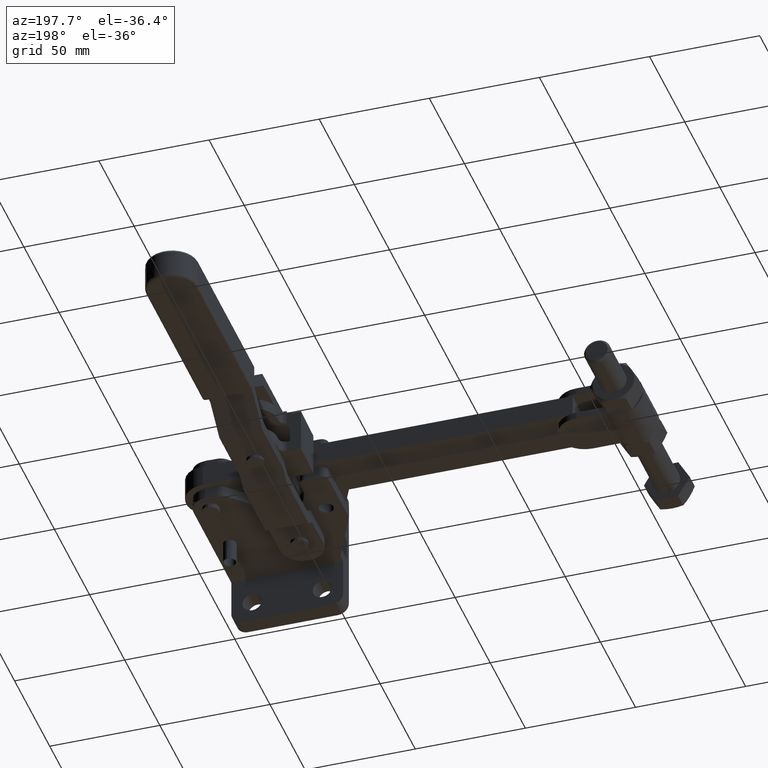
[diagram: clean part render]
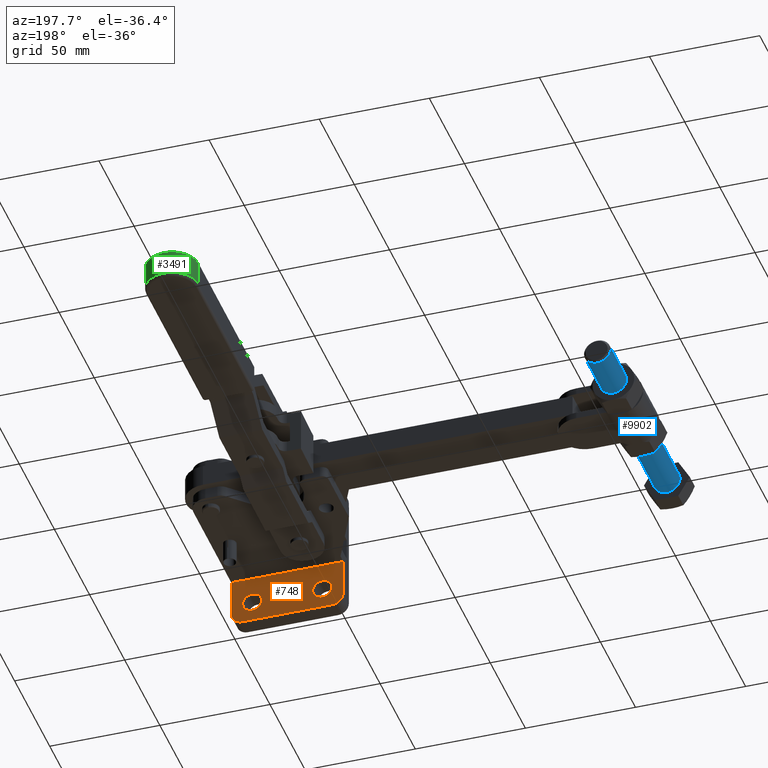
[diagram: same view with three faces highlighted in distinct colors, each labeled with its STEP entity id]
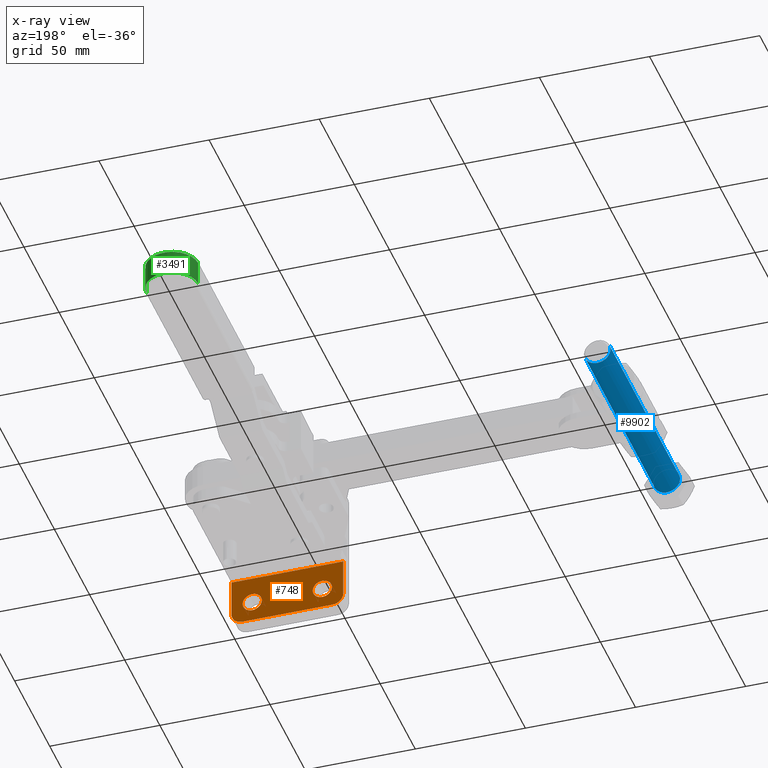
[diagram: x-ray of the same camera — body ghosted, the three highlighted faces saturated]
A machine part, auxiliary view with three faces highlighted in distinct colors.
The next image is the same camera in x-ray (body ghosted, the three faces saturated) — at least one of them is partly hidden behind the body in this view.
Their STEP definitions:

[orange] entity #748 — the highlighted planar face has unit normal (0, -1, -0).
#174 = DIRECTION ( 'NONE',  ( -1.224606353822368400E-016, 1.000000000000000000, 7.844394864020566400E-017 ) ) ;
#357 = ORIENTED_EDGE ( 'NONE', *, *, #3389, .F. ) ;
#438 = CARTESIAN_POINT ( 'NONE',  ( -7.250642050390549500E-016, 5.000000000000024900, -15.00000000000018300 ) ) ;
#748 = ADVANCED_FACE ( 'NONE', ( #5732, #8033, #10310 ), #2053, .F. ) ;
#936 = ORIENTED_EDGE ( 'NONE', *, *, #9199, .T. ) ;
#999 = EDGE_CURVE ( 'NONE', #2484, #2651, #4802, .T. ) ;
#1149 = VERTEX_POINT ( 'NONE', #7166 ) ;
#1280 = CARTESIAN_POINT ( 'NONE',  ( -36.94999999999817000, 4.999999999999997300, -27.60000000000017900 ) ) ;
#1558 = EDGE_CURVE ( 'NONE', #4331, #3087, #4382, .T. ) ;
#1736 = DIRECTION ( 'NONE',  ( 1.224606353822368400E-016, -1.000000000000000000, -7.844394864020566400E-017 ) ) ;
#1768 = AXIS2_PLACEMENT_3D ( 'NONE', #7449, #7422, #7393 ) ;
#1850 = LINE ( 'NONE', #10633, #6473 ) ;
#1937 = ORIENTED_EDGE ( 'NONE', *, *, #999, .T. ) ;
#2053 = PLANE ( 'NONE',  #2704 ) ;
#2073 = DIRECTION ( 'NONE',  ( 1.224606353822368400E-016, -1.000000000000000000, -7.844394864020566400E-017 ) ) ;
#2124 = AXIS2_PLACEMENT_3D ( 'NONE', #9550, #2073, #9465 ) ;
#2197 = EDGE_CURVE ( 'NONE', #2484, #10666, #10294, .T. ) ;
#2293 = ORIENTED_EDGE ( 'NONE', *, *, #5991, .F. ) ;
#2415 = ORIENTED_EDGE ( 'NONE', *, *, #8630, .F. ) ;
#2484 = VERTEX_POINT ( 'NONE', #6148 ) ;
#2651 = VERTEX_POINT ( 'NONE', #438 ) ;
#2704 = AXIS2_PLACEMENT_3D ( 'NONE', #9872, #1736, #5995 ) ;
#3087 = VERTEX_POINT ( 'NONE', #1280 ) ;
#3386 = EDGE_LOOP ( 'NONE', ( #1937, #936, #10460, #3618, #357, #6509 ) ) ;
#3389 = EDGE_CURVE ( 'NONE', #10666, #8511, #9544, .T. ) ;
#3517 = CIRCLE ( 'NONE', #5021, 4.349999999999997900 ) ;
#3618 = ORIENTED_EDGE ( 'NONE', *, *, #5701, .F. ) ;
#3782 = VERTEX_POINT ( 'NONE', #6508 ) ;
#3853 = ORIENTED_EDGE ( 'NONE', *, *, #4516, .F. ) ;
#4030 = CIRCLE ( 'NONE', #5657, 5.000000000000034600 ) ;
#4281 = VERTEX_POINT ( 'NONE', #10297 ) ;
#4331 = VERTEX_POINT ( 'NONE', #9985 ) ;
#4382 = CIRCLE ( 'NONE', #9307, 4.349999999999999600 ) ;
#4516 = EDGE_CURVE ( 'NONE', #5374, #4281, #5453, .T. ) ;
#4802 = LINE ( 'NONE', #9737, #6796 ) ;
#5021 = AXIS2_PLACEMENT_3D ( 'NONE', #8058, #8051, #8026 ) ;
#5071 = CARTESIAN_POINT ( 'NONE',  ( -3.815794768637581600E-015, 4.999999999999997300, 21.38478196670506300 ) ) ;
#5374 = VERTEX_POINT ( 'NONE', #7630 ) ;
#5449 = DIRECTION ( 'NONE',  ( 9.136594018233799700E-017, 7.844394864020567600E-017, -1.000000000000000000 ) ) ;
#5453 = CIRCLE ( 'NONE', #1768, 4.349999999999997900 ) ;
#5484 = EDGE_LOOP ( 'NONE', ( #6728, #2293 ) ) ;
#5491 = EDGE_LOOP ( 'NONE', ( #3853, #2415 ) ) ;
#5589 = CARTESIAN_POINT ( 'NONE',  ( -50.79999999999999700, 4.999999999999995600, -32.10000000000023600 ) ) ;
#5657 = AXIS2_PLACEMENT_3D ( 'NONE', #6749, #6748, #6723 ) ;
#5701 = EDGE_CURVE ( 'NONE', #8511, #3782, #1850, .T. ) ;
#5732 = FACE_BOUND ( 'NONE', #5491, .T. ) ;
#5991 = EDGE_CURVE ( 'NONE', #3087, #4331, #7004, .T. ) ;
#5995 = DIRECTION ( 'NONE',  ( 1.000000000000000000, 1.224606353822368400E-016, -1.007987712624742600E-017 ) ) ;
#6007 = DIRECTION ( 'NONE',  ( 1.000000000000000000, 1.224606353822368400E-016, -1.007987712624742600E-017 ) ) ;
#6148 = CARTESIAN_POINT ( 'NONE',  ( -50.79999999999817100, 4.999999999999993800, -15.00000000000017900 ) ) ;
#6248 = DIRECTION ( 'NONE',  ( -1.000000000000000000, -1.993935029858399100E-016, 0.0000000000000000000 ) ) ;
#6285 = EDGE_CURVE ( 'NONE', #3782, #1149, #4030, .T. ) ;
#6451 = AXIS2_PLACEMENT_3D ( 'NONE', #8517, #8516, #8500 ) ;
#6473 = VECTOR ( 'NONE', #10628, 1000.000000000000000 ) ;
#6508 = CARTESIAN_POINT ( 'NONE',  ( -5.000000000000036400, 5.000000000000000900, -37.10000000000017900 ) ) ;
#6509 = ORIENTED_EDGE ( 'NONE', *, *, #2197, .F. ) ;
#6645 = CARTESIAN_POINT ( 'NONE',  ( -50.79999999999999700, 4.999999999999991100, 21.38478196670506300 ) ) ;
#6723 = DIRECTION ( 'NONE',  ( 1.000000000000000000, 1.734723475976795000E-016, -1.387778780781436000E-015 ) ) ;
#6728 = ORIENTED_EDGE ( 'NONE', *, *, #1558, .F. ) ;
#6748 = DIRECTION ( 'NONE',  ( 1.224606353822368400E-016, -1.000000000000000000, -7.844394864020566400E-017 ) ) ;
#6749 = CARTESIAN_POINT ( 'NONE',  ( -5.000000000000035500, 5.000000000000000900, -32.10000000000015100 ) ) ;
#6796 = VECTOR ( 'NONE', #6007, 1000.000000000000000 ) ;
#7004 = CIRCLE ( 'NONE', #6451, 4.349999999999999600 ) ;
#7166 = CARTESIAN_POINT ( 'NONE',  ( 1.070892621197797000E-015, 5.000000000000001800, -32.10000000000015100 ) ) ;
#7393 = DIRECTION ( 'NONE',  ( -1.000000000000000000, -1.993935029858399900E-016, 0.0000000000000000000 ) ) ;
#7422 = DIRECTION ( 'NONE',  ( -1.224606353822368400E-016, 1.000000000000000000, 7.844394864020566400E-017 ) ) ;
#7449 = CARTESIAN_POINT ( 'NONE',  ( -9.499999999998168600, 5.000000000000000000, -27.60000000000017900 ) ) ;
#7630 = CARTESIAN_POINT ( 'NONE',  ( -13.84999999999816600, 4.999999999999999100, -27.60000000000017900 ) ) ;
#8017 = VECTOR ( 'NONE', #10819, 1000.000000000000000 ) ;
#8026 = DIRECTION ( 'NONE',  ( -1.000000000000000000, -1.993935029858399900E-016, 0.0000000000000000000 ) ) ;
#8033 = FACE_BOUND ( 'NONE', #5484, .T. ) ;
#8051 = DIRECTION ( 'NONE',  ( -1.224606353822368400E-016, 1.000000000000000000, 7.844394864020566400E-017 ) ) ;
#8058 = CARTESIAN_POINT ( 'NONE',  ( -9.499999999998168600, 5.000000000000000000, -27.60000000000017900 ) ) ;
#8500 = DIRECTION ( 'NONE',  ( -1.000000000000000000, -1.993935029858399100E-016, 0.0000000000000000000 ) ) ;
#8511 = VERTEX_POINT ( 'NONE', #8937 ) ;
#8516 = DIRECTION ( 'NONE',  ( -1.224606353822368400E-016, 1.000000000000000000, 7.844394864020566400E-017 ) ) ;
#8517 = CARTESIAN_POINT ( 'NONE',  ( -41.29999999999817100, 4.999999999999996400, -27.60000000000017900 ) ) ;
#8630 = EDGE_CURVE ( 'NONE', #4281, #5374, #3517, .T. ) ;
#8851 = CARTESIAN_POINT ( 'NONE',  ( -41.29999999999817100, 4.999999999999996400, -27.60000000000017900 ) ) ;
#8912 = LINE ( 'NONE', #5071, #10901 ) ;
#8937 = CARTESIAN_POINT ( 'NONE',  ( -45.80000000000000400, 4.999999999999996400, -37.10000000000017900 ) ) ;
#9199 = EDGE_CURVE ( 'NONE', #2651, #1149, #8912, .T. ) ;
#9307 = AXIS2_PLACEMENT_3D ( 'NONE', #8851, #174, #6248 ) ;
#9465 = DIRECTION ( 'NONE',  ( 1.000000000000000000, 1.734723475976808100E-016, -1.387778780781446500E-015 ) ) ;
#9544 = CIRCLE ( 'NONE', #2124, 4.999999999999997300 ) ;
#9550 = CARTESIAN_POINT ( 'NONE',  ( -45.79999999999999700, 4.999999999999996400, -32.10000000000017900 ) ) ;
#9737 = CARTESIAN_POINT ( 'NONE',  ( -25.39316886956049800, 4.999999999999996400, -15.00000000000017900 ) ) ;
#9872 = CARTESIAN_POINT ( 'NONE',  ( -25.39316886956049800, 4.999999999999993800, 21.38478196670506300 ) ) ;
#9985 = CARTESIAN_POINT ( 'NONE',  ( -45.64999999999817200, 4.999999999999995600, -27.60000000000017900 ) ) ;
#10294 = LINE ( 'NONE', #6645, #8017 ) ;
#10297 = CARTESIAN_POINT ( 'NONE',  ( -5.149999999998168900, 5.000000000000000900, -27.60000000000017900 ) ) ;
#10310 = FACE_OUTER_BOUND ( 'NONE', #3386, .T. ) ;
#10460 = ORIENTED_EDGE ( 'NONE', *, *, #6285, .F. ) ;
#10628 = DIRECTION ( 'NONE',  ( 1.000000000000000000, 1.224606353822368400E-016, -1.007987712624742600E-017 ) ) ;
#10633 = CARTESIAN_POINT ( 'NONE',  ( -25.39316886956049800, 4.999999999999998200, -37.10000000000017900 ) ) ;
#10666 = VERTEX_POINT ( 'NONE', #5589 ) ;
#10819 = DIRECTION ( 'NONE',  ( -1.007987712624743500E-017, 7.844394864020566400E-017, -1.000000000000000000 ) ) ;
#10901 = VECTOR ( 'NONE', #5449, 1000.000000000000000 ) ;

[blue] entity #9902 — the highlighted cylindrical surface (edge-blend (fillet) strip) has radius 6 mm, axis along (0, -1, 0).
#257 = AXIS2_PLACEMENT_3D ( 'NONE', #396, #3067, #4798 ) ;
#371 = EDGE_CURVE ( 'NONE', #8853, #5515, #8857, .T. ) ;
#396 = CARTESIAN_POINT ( 'NONE',  ( -197.8353720347270200, 104.2814043351662900, -4.999999999998519400 ) ) ;
#533 = LINE ( 'NONE', #1194, #9740 ) ;
#1156 = DIRECTION ( 'NONE',  ( 3.885780586188057800E-016, -1.000000000000000000, 1.636625658568741100E-016 ) ) ;
#1179 = DIRECTION ( 'NONE',  ( 0.8660254037844379300, 2.891205793294677800E-016, -0.5000000000000012200 ) ) ;
#1194 = CARTESIAN_POINT ( 'NONE',  ( -203.0315244574336200, -2.704595664833700800, -1.999999999998493900 ) ) ;
#1228 = DIRECTION ( 'NONE',  ( 3.885780586188057800E-016, -1.000000000000000000, 1.636625658568741100E-016 ) ) ;
#1251 = CARTESIAN_POINT ( 'NONE',  ( -197.8353720347269900, -2.704595664833699100, -4.999999999998502500 ) ) ;
#1504 = EDGE_CURVE ( 'NONE', #5515, #1570, #1625, .T. ) ;
#1570 = VERTEX_POINT ( 'NONE', #2757 ) ;
#1625 = LINE ( 'NONE', #10094, #4652 ) ;
#1919 = DIRECTION ( 'NONE',  ( 3.885780586188057800E-016, -1.000000000000000000, 1.636625658568741100E-016 ) ) ;
#2080 = EDGE_CURVE ( 'NONE', #6316, #1570, #10025, .T. ) ;
#2757 = CARTESIAN_POINT ( 'NONE',  ( -192.6392196120203600, 5.245404335166301600, -7.999999999998516700 ) ) ;
#3067 = DIRECTION ( 'NONE',  ( 3.885780586188057800E-016, -1.000000000000000000, 1.636625658568741100E-016 ) ) ;
#3088 = ORIENTED_EDGE ( 'NONE', *, *, #5587, .F. ) ;
#3336 = CYLINDRICAL_SURFACE ( 'NONE', #5660, 6.000000000000001800 ) ;
#3929 = ORIENTED_EDGE ( 'NONE', *, *, #371, .T. ) ;
#4652 = VECTOR ( 'NONE', #1919, 1000.000000000000000 ) ;
#4798 = DIRECTION ( 'NONE',  ( 0.8660254037844379300, 0.0000000000000000000, -0.5000000000000012200 ) ) ;
#5515 = VERTEX_POINT ( 'NONE', #5925 ) ;
#5587 = EDGE_CURVE ( 'NONE', #8853, #6316, #533, .T. ) ;
#5660 = AXIS2_PLACEMENT_3D ( 'NONE', #1251, #1156, #1179 ) ;
#5925 = CARTESIAN_POINT ( 'NONE',  ( -192.6392196120203800, 104.2814043351662900, -7.999999999998527400 ) ) ;
#5942 = CARTESIAN_POINT ( 'NONE',  ( -197.8353720347269900, 5.245404335166299800, -4.999999999998504300 ) ) ;
#6316 = VERTEX_POINT ( 'NONE', #6530 ) ;
#6530 = CARTESIAN_POINT ( 'NONE',  ( -203.0315244574336200, 5.245404335166298000, -1.999999999998501200 ) ) ;
#6544 = AXIS2_PLACEMENT_3D ( 'NONE', #5942, #6812, #9404 ) ;
#6714 = ORIENTED_EDGE ( 'NONE', *, *, #1504, .T. ) ;
#6812 = DIRECTION ( 'NONE',  ( 3.885780586188057800E-016, -1.000000000000000000, 1.636625658568741100E-016 ) ) ;
#7455 = CARTESIAN_POINT ( 'NONE',  ( -203.0315244574336500, 104.2814043351662900, -1.999999999998492500 ) ) ;
#8459 = FACE_OUTER_BOUND ( 'NONE', #9468, .T. ) ;
#8853 = VERTEX_POINT ( 'NONE', #7455 ) ;
#8857 = CIRCLE ( 'NONE', #257, 6.000000000000001800 ) ;
#9055 = ORIENTED_EDGE ( 'NONE', *, *, #2080, .F. ) ;
#9404 = DIRECTION ( 'NONE',  ( -0.8660254037844379300, -2.891205793294677800E-016, 0.5000000000000012200 ) ) ;
#9468 = EDGE_LOOP ( 'NONE', ( #3088, #3929, #6714, #9055 ) ) ;
#9740 = VECTOR ( 'NONE', #1228, 1000.000000000000000 ) ;
#9902 = ADVANCED_FACE ( 'NONE', ( #8459 ), #3336, .T. ) ;
#10025 = CIRCLE ( 'NONE', #6544, 6.000000000000001800 ) ;
#10094 = CARTESIAN_POINT ( 'NONE',  ( -192.6392196120203600, -2.704595664833697300, -7.999999999998509600 ) ) ;

[green] entity #3491 — the highlighted cylindrical surface (edge-blend (fillet) strip) has radius 11.75 mm, axis along (-0, -0, -1).
#29 = LINE ( 'NONE', #6233, #6650 ) ;
#966 = DIRECTION ( 'NONE',  ( -0.0000000000000000000, -0.0000000000000000000, -1.000000000000000000 ) ) ;
#1099 = CARTESIAN_POINT ( 'NONE',  ( -50.74999999999787500, 211.2500000000003400, 0.4999999999999353900 ) ) ;
#1122 = AXIS2_PLACEMENT_3D ( 'NONE', #3958, #3928, #3947 ) ;
#1773 = CIRCLE ( 'NONE', #1122, 11.74999999999999600 ) ;
#1788 = FACE_OUTER_BOUND ( 'NONE', #11110, .T. ) ;
#2801 = VERTEX_POINT ( 'NONE', #7827 ) ;
#3035 = CYLINDRICAL_SURFACE ( 'NONE', #9108, 11.74999999999999600 ) ;
#3048 = VERTEX_POINT ( 'NONE', #1099 ) ;
#3182 = AXIS2_PLACEMENT_3D ( 'NONE', #8735, #966, #10626 ) ;
#3333 = CARTESIAN_POINT ( 'NONE',  ( -27.24999999999787200, 211.2500000000003400, -10.50000000000006400 ) ) ;
#3491 = ADVANCED_FACE ( 'NONE', ( #1788 ), #3035, .T. ) ;
#3822 = ORIENTED_EDGE ( 'NONE', *, *, #9257, .F. ) ;
#3925 = EDGE_CURVE ( 'NONE', #6883, #2801, #1773, .T. ) ;
#3928 = DIRECTION ( 'NONE',  ( 0.0000000000000000000, 0.0000000000000000000, 1.000000000000000000 ) ) ;
#3947 = DIRECTION ( 'NONE',  ( -1.000000000000000000, 0.0000000000000000000, 0.0000000000000000000 ) ) ;
#3958 = CARTESIAN_POINT ( 'NONE',  ( -38.99999999999786800, 211.2500000000003400, -10.50000000000006400 ) ) ;
#4237 = EDGE_CURVE ( 'NONE', #3048, #4625, #5327, .T. ) ;
#4566 = DIRECTION ( 'NONE',  ( 0.0000000000000000000, 0.0000000000000000000, -1.000000000000000000 ) ) ;
#4625 = VERTEX_POINT ( 'NONE', #6309 ) ;
#4636 = EDGE_CURVE ( 'NONE', #4625, #6883, #29, .T. ) ;
#5327 = CIRCLE ( 'NONE', #3182, 11.74999999999999600 ) ;
#5902 = ORIENTED_EDGE ( 'NONE', *, *, #4237, .T. ) ;
#6061 = LINE ( 'NONE', #6555, #10370 ) ;
#6231 = DIRECTION ( 'NONE',  ( -0.0000000000000000000, -0.0000000000000000000, -1.000000000000000000 ) ) ;
#6233 = CARTESIAN_POINT ( 'NONE',  ( -27.24999999999787200, 211.2500000000003400, -6.418476861114186200E-014 ) ) ;
#6309 = CARTESIAN_POINT ( 'NONE',  ( -27.24999999999787200, 211.2500000000003400, 0.4999999999999353900 ) ) ;
#6555 = CARTESIAN_POINT ( 'NONE',  ( -50.74999999999787500, 211.2500000000003400, -6.418476861114186200E-014 ) ) ;
#6650 = VECTOR ( 'NONE', #6231, 1000.000000000000000 ) ;
#6883 = VERTEX_POINT ( 'NONE', #3333 ) ;
#7248 = ORIENTED_EDGE ( 'NONE', *, *, #3925, .T. ) ;
#7827 = CARTESIAN_POINT ( 'NONE',  ( -50.74999999999787500, 211.2500000000003400, -10.50000000000006400 ) ) ;
#8643 = DIRECTION ( 'NONE',  ( -1.000000000000000000, 0.0000000000000000000, 0.0000000000000000000 ) ) ;
#8652 = CARTESIAN_POINT ( 'NONE',  ( -38.99999999999786800, 211.2500000000003400, -6.418476861114186200E-014 ) ) ;
#8735 = CARTESIAN_POINT ( 'NONE',  ( -38.99999999999786800, 211.2500000000003400, 0.4999999999999353900 ) ) ;
#8954 = DIRECTION ( 'NONE',  ( -0.0000000000000000000, -0.0000000000000000000, -1.000000000000000000 ) ) ;
#9108 = AXIS2_PLACEMENT_3D ( 'NONE', #8652, #8954, #8643 ) ;
#9257 = EDGE_CURVE ( 'NONE', #3048, #2801, #6061, .T. ) ;
#9296 = ORIENTED_EDGE ( 'NONE', *, *, #4636, .T. ) ;
#10370 = VECTOR ( 'NONE', #4566, 1000.000000000000000 ) ;
#10626 = DIRECTION ( 'NONE',  ( -1.000000000000000000, 0.0000000000000000000, 0.0000000000000000000 ) ) ;
#11110 = EDGE_LOOP ( 'NONE', ( #9296, #7248, #3822, #5902 ) ) ;